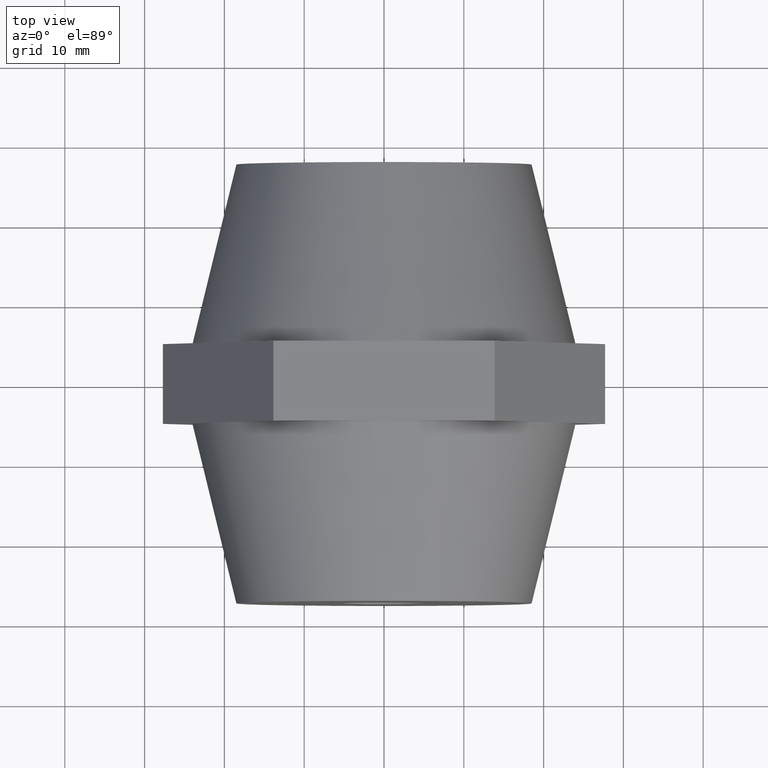
[diagram: clean part render]
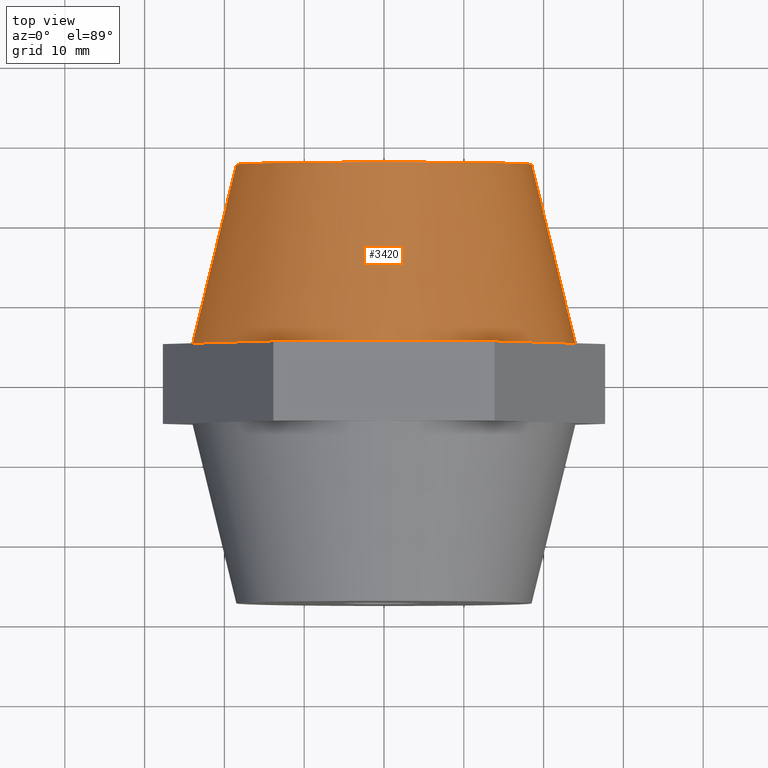
[diagram: same view with one face highlighted and labeled with its STEP entity id]
A machine part, top view. The second image highlights one B-rep face of the part: STEP entity #3420.
In plain terms, the highlighted conical surface has half-angle 13.736 deg.
Its self-contained STEP definition (entity closure, byte-faithful):
#175 = ORIENTED_EDGE ( 'NONE', *, *, #2649, .T. ) ;
#197 = VECTOR ( 'NONE', #1275, 1000.000000000000200 ) ;
#289 = VERTEX_POINT ( 'NONE', #1162 ) ;
#292 = AXIS2_PLACEMENT_3D ( 'NONE', #866, #3886, #2425 ) ;
#335 = DIRECTION ( 'NONE',  ( -1.000000000000000000, -1.445602896647339200E-016, 0.0000000000000000000 ) ) ;
#440 = DIRECTION ( 'NONE',  ( -1.000000000000000000, -1.445602896647339200E-016, 0.0000000000000000000 ) ) ;
#460 = CARTESIAN_POINT ( 'NONE',  ( -18.50000000000000000, 27.49999999999999600, 2.602374448188125800E-015 ) ) ;
#472 = LINE ( 'NONE', #2065, #3108 ) ;
#481 = EDGE_LOOP ( 'NONE', ( #1084, #3735, #175, #2621, #3413, #3678, #2517 ) ) ;
#740 = CARTESIAN_POINT ( 'NONE',  ( 18.50000000000000000, 27.50000000000000400, 0.0000000000000000000 ) ) ;
#752 = CIRCLE ( 'NONE', #802, 24.00000000000000000 ) ;
#802 = AXIS2_PLACEMENT_3D ( 'NONE', #3204, #1965, #1672 ) ;
#866 = CARTESIAN_POINT ( 'NONE',  ( -1.583877956326650100E-015, 27.50000000000000000, 0.0000000000000000000 ) ) ;
#1002 = CARTESIAN_POINT ( 'NONE',  ( -18.50000000000000000, 27.49999999999999600, 2.265596578422603400E-015 ) ) ;
#1011 = EDGE_CURVE ( 'NONE', #3913, #2257, #2366, .T. ) ;
#1084 = ORIENTED_EDGE ( 'NONE', *, *, #1011, .F. ) ;
#1091 = DIRECTION ( 'NONE',  ( -1.000000000000000000, -1.445602896647339200E-016, 0.0000000000000000000 ) ) ;
#1162 = CARTESIAN_POINT ( 'NONE',  ( -24.00000000000001100, 4.999999999999996400, 2.939152317953649500E-015 ) ) ;
#1231 = CONICAL_SURFACE ( 'NONE', #292, 18.50000000000000000, 0.2397431088704571600 ) ;
#1275 = DIRECTION ( 'NONE',  ( -0.2374530904769904800, -0.9713990064967773500, 2.907961672002933900E-017 ) ) ;
#1278 = CARTESIAN_POINT ( 'NONE',  ( 1.902710531950845100E-015, 5.000000000000000000, 0.0000000000000000000 ) ) ;
#1584 = CARTESIAN_POINT ( 'NONE',  ( 1.902710531950845100E-015, 5.000000000000000000, 0.0000000000000000000 ) ) ;
#1672 = DIRECTION ( 'NONE',  ( -1.000000000000000000, -1.445602896647339200E-016, 0.0000000000000000000 ) ) ;
#1680 = DIRECTION ( 'NONE',  ( -1.549594883678885000E-016, 1.000000000000000000, 0.0000000000000000000 ) ) ;
#1825 = DIRECTION ( 'NONE',  ( -1.549594883678885000E-016, 1.000000000000000000, 0.0000000000000000000 ) ) ;
#1965 = DIRECTION ( 'NONE',  ( -1.549594883678885000E-016, 1.000000000000000000, 0.0000000000000000000 ) ) ;
#2065 = CARTESIAN_POINT ( 'NONE',  ( 18.50000000000000000, 27.50000000000000400, 0.0000000000000000000 ) ) ;
#2089 = CARTESIAN_POINT ( 'NONE',  ( -20.78460969082655300, 5.000000000000000000, 12.00000000000000000 ) ) ;
#2090 = VERTEX_POINT ( 'NONE', #2216 ) ;
#2099 = FACE_OUTER_BOUND ( 'NONE', #481, .T. ) ;
#2143 = EDGE_CURVE ( 'NONE', #3546, #3111, #2378, .T. ) ;
#2160 = EDGE_CURVE ( 'NONE', #2090, #3546, #752, .T. ) ;
#2204 = AXIS2_PLACEMENT_3D ( 'NONE', #2941, #1680, #1091 ) ;
#2206 = DIRECTION ( 'NONE',  ( -1.549594883678885000E-016, 1.000000000000000000, 0.0000000000000000000 ) ) ;
#2216 = CARTESIAN_POINT ( 'NONE',  ( -4.588507153800969100E-015, 5.000000000000000000, 24.00000000000000000 ) ) ;
#2257 = VERTEX_POINT ( 'NONE', #740 ) ;
#2316 = DIRECTION ( 'NONE',  ( 0.2374530904769907300, -0.9713990064967772400, 0.0000000000000000000 ) ) ;
#2354 = EDGE_CURVE ( 'NONE', #2257, #3111, #472, .T. ) ;
#2366 = CIRCLE ( 'NONE', #3003, 18.50000000000000000 ) ;
#2378 = CIRCLE ( 'NONE', #2511, 24.00000000000000000 ) ;
#2425 = DIRECTION ( 'NONE',  ( 1.000000000000000000, 1.875376730785737500E-016, 0.0000000000000000000 ) ) ;
#2433 = LINE ( 'NONE', #1002, #197 ) ;
#2511 = AXIS2_PLACEMENT_3D ( 'NONE', #1584, #1825, #335 ) ;
#2517 = ORIENTED_EDGE ( 'NONE', *, *, #2354, .F. ) ;
#2578 = CARTESIAN_POINT ( 'NONE',  ( 24.00000000000001800, 5.000000000000003600, 0.0000000000000000000 ) ) ;
#2621 = ORIENTED_EDGE ( 'NONE', *, *, #3185, .T. ) ;
#2627 = DIRECTION ( 'NONE',  ( -1.549594883678885000E-016, 1.000000000000000000, 0.0000000000000000000 ) ) ;
#2649 = EDGE_CURVE ( 'NONE', #289, #2881, #3808, .T. ) ;
#2865 = AXIS2_PLACEMENT_3D ( 'NONE', #1278, #2206, #440 ) ;
#2881 = VERTEX_POINT ( 'NONE', #2089 ) ;
#2941 = CARTESIAN_POINT ( 'NONE',  ( 1.902710531950845100E-015, 5.000000000000000000, 0.0000000000000000000 ) ) ;
#3003 = AXIS2_PLACEMENT_3D ( 'NONE', #3849, #2627, #3530 ) ;
#3051 = CARTESIAN_POINT ( 'NONE',  ( 20.78460969082655300, 5.000000000000000000, 12.00000000000000000 ) ) ;
#3108 = VECTOR ( 'NONE', #2316, 1000.000000000000100 ) ;
#3111 = VERTEX_POINT ( 'NONE', #2578 ) ;
#3127 = CIRCLE ( 'NONE', #2204, 24.00000000000000000 ) ;
#3185 = EDGE_CURVE ( 'NONE', #2881, #2090, #3127, .T. ) ;
#3204 = CARTESIAN_POINT ( 'NONE',  ( 1.902710531950845100E-015, 5.000000000000000000, 0.0000000000000000000 ) ) ;
#3413 = ORIENTED_EDGE ( 'NONE', *, *, #2160, .T. ) ;
#3420 = ADVANCED_FACE ( 'NONE', ( #2099 ), #1231, .T. ) ;
#3530 = DIRECTION ( 'NONE',  ( -1.000000000000000000, -1.875376730785737500E-016, 0.0000000000000000000 ) ) ;
#3546 = VERTEX_POINT ( 'NONE', #3051 ) ;
#3678 = ORIENTED_EDGE ( 'NONE', *, *, #2143, .T. ) ;
#3735 = ORIENTED_EDGE ( 'NONE', *, *, #3747, .T. ) ;
#3747 = EDGE_CURVE ( 'NONE', #3913, #289, #2433, .T. ) ;
#3808 = CIRCLE ( 'NONE', #2865, 24.00000000000000000 ) ;
#3849 = CARTESIAN_POINT ( 'NONE',  ( -1.583877956326650100E-015, 27.50000000000000000, 0.0000000000000000000 ) ) ;
#3886 = DIRECTION ( 'NONE',  ( 1.549594883678885000E-016, -1.000000000000000000, 0.0000000000000000000 ) ) ;
#3913 = VERTEX_POINT ( 'NONE', #460 ) ;